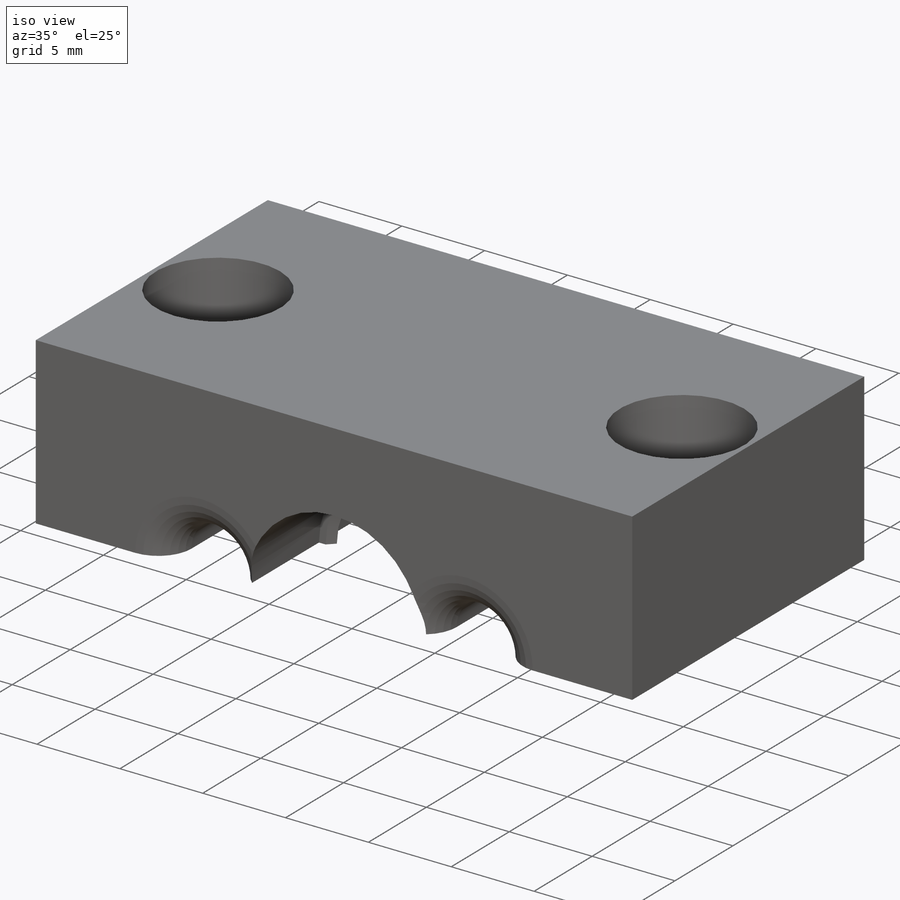
[diagram: iso view]
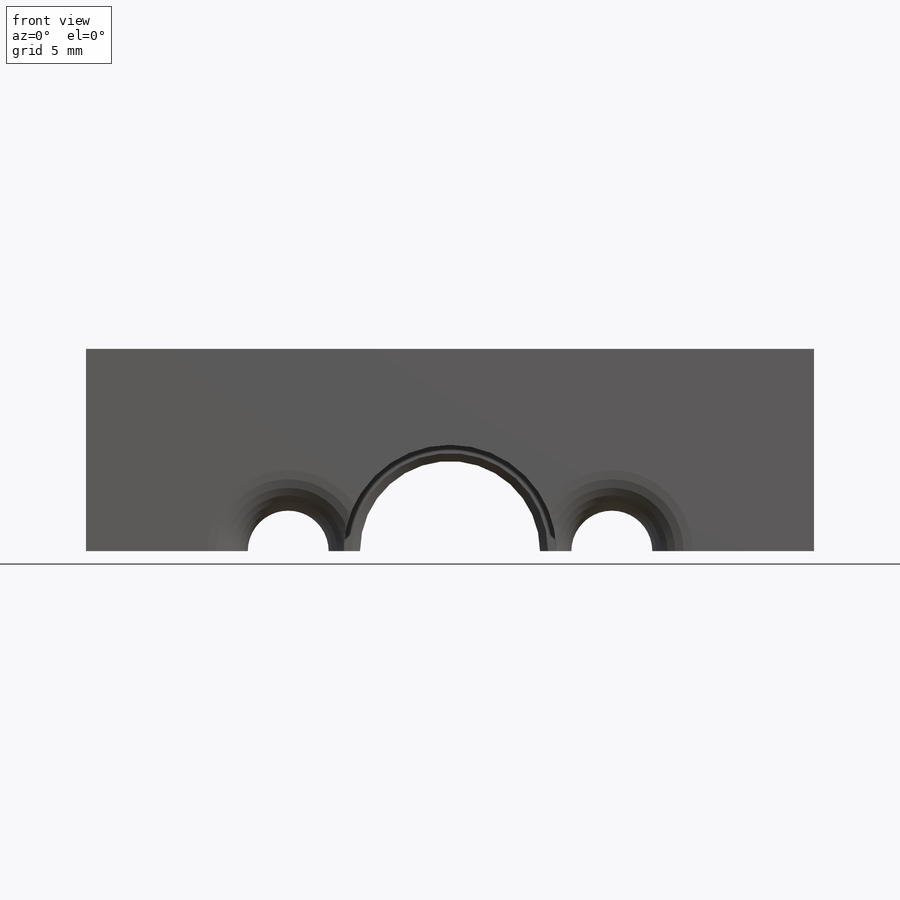
[diagram: front view]
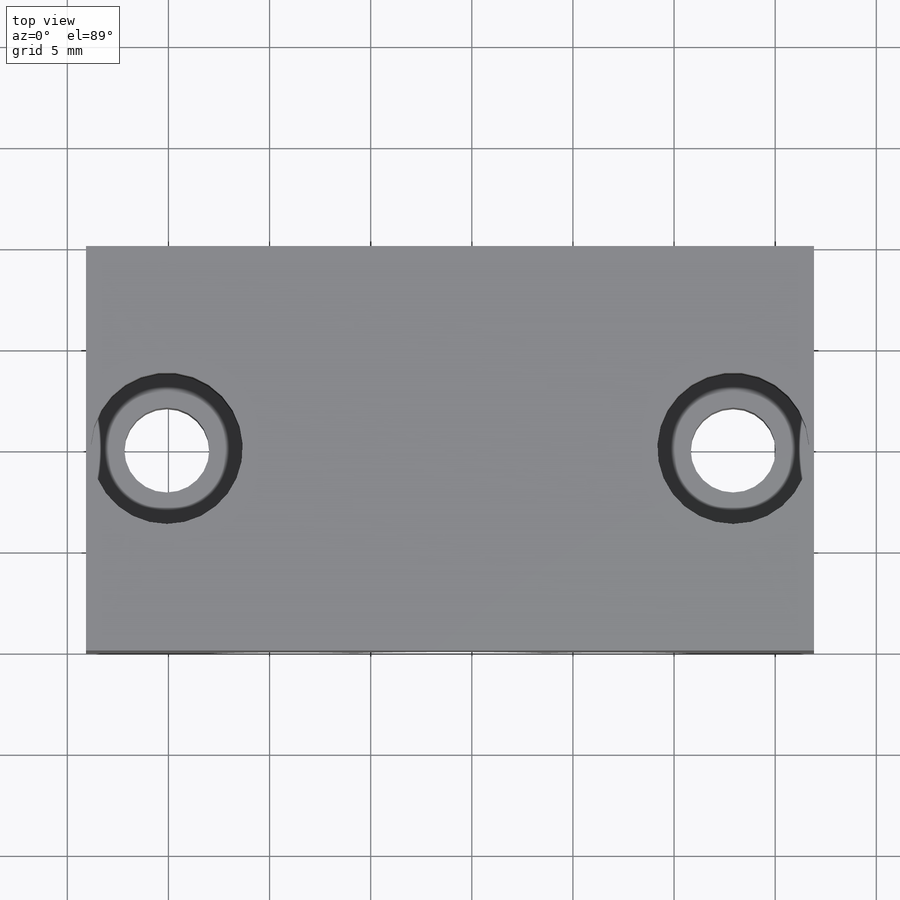
[diagram: top view]
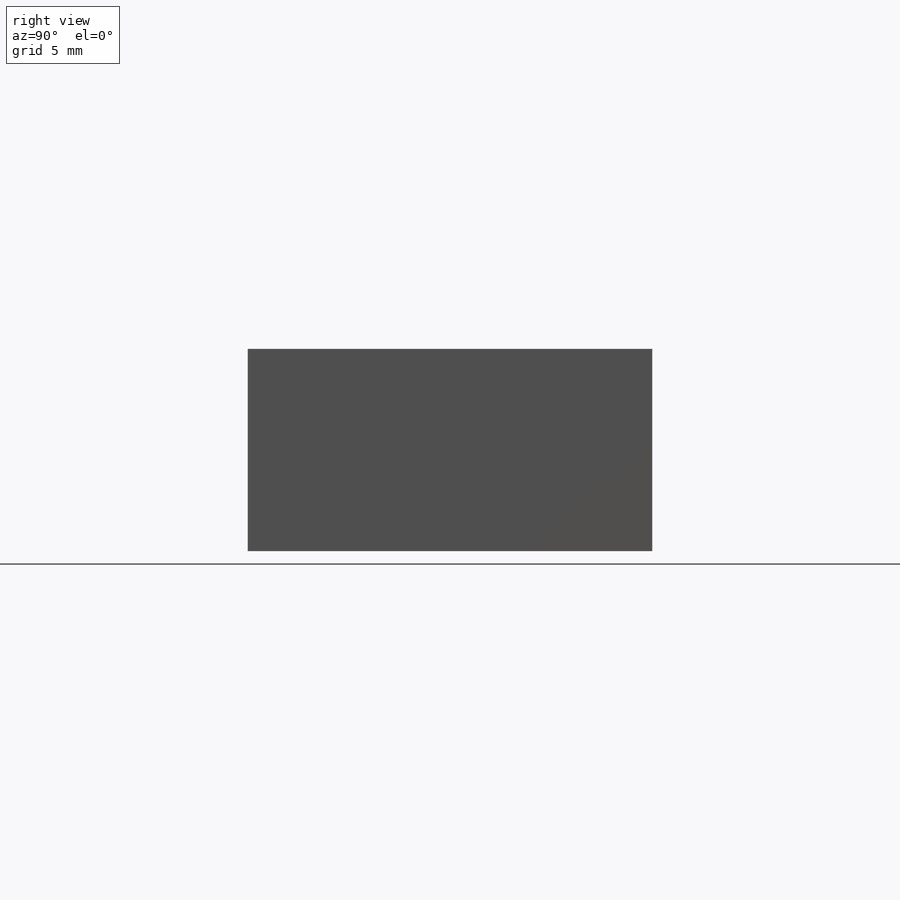
[diagram: right view]
SOLIDWORKS PART (.sldprt)
format: sldprt  version: not decoded by parser v0  size: 473,088 bytes
history: native  units: mm
features: sketch x4, cut_extrude x2, material x1, extrude x1, sweep x1, chamfer x1, fillet x1 (+11 scaffold rows collapsed)
feature tree (22):
  scaffold x11  (default folders/planes/origin — collapsed)
  material  "Material <not specified>"
  sketch  "Sketch1"  dims[c1.D5=10.5mm c1.D8=4.0mm c1.D1=30.0mm c1.D2=20.0mm c1.D3=18.0mm c1.D4=8.0mm c1.D6=8.0mm c1.D7=16.0mm c1.D9=8.0mm c2.D1=10.0mm c2.D2=10.0mm c2.D4=36.0mm]
  extrude  "Boss-Extrude1"  Depth=20mm
  sketch  "Sketch2"  dims[c1.D1=0.8mm c1.D2=0.8mm c1.D4=1.0mm c1.D5=3.0mm c2.D4=4.0mm c2.D3=5.0]
  sweep  "Sweep2"
  chamfer  "Chamfer1"  Distance=0.4mm Angle=45deg
  fillet  "Fillet2"  Radius=2mm
  sketch  "Sketch3"  dims[D1=4.2mm D2=4.2mm D3=4.0mm D4=4.0mm D5=10.0mm]
  cut_extrude  "Cut-Extrude1"  [1 undecoded]
  sketch  "Sketch4"  dims[D1=7.5mm]
  cut_extrude  "Cut-Extrude2"  Depth=5mm
decode coverage: 8 of 10 modeling features carry decoded parameters
note: 1 parameter value undecoded
note: suppression state not decoded; provenance and decode notes live in map.json
